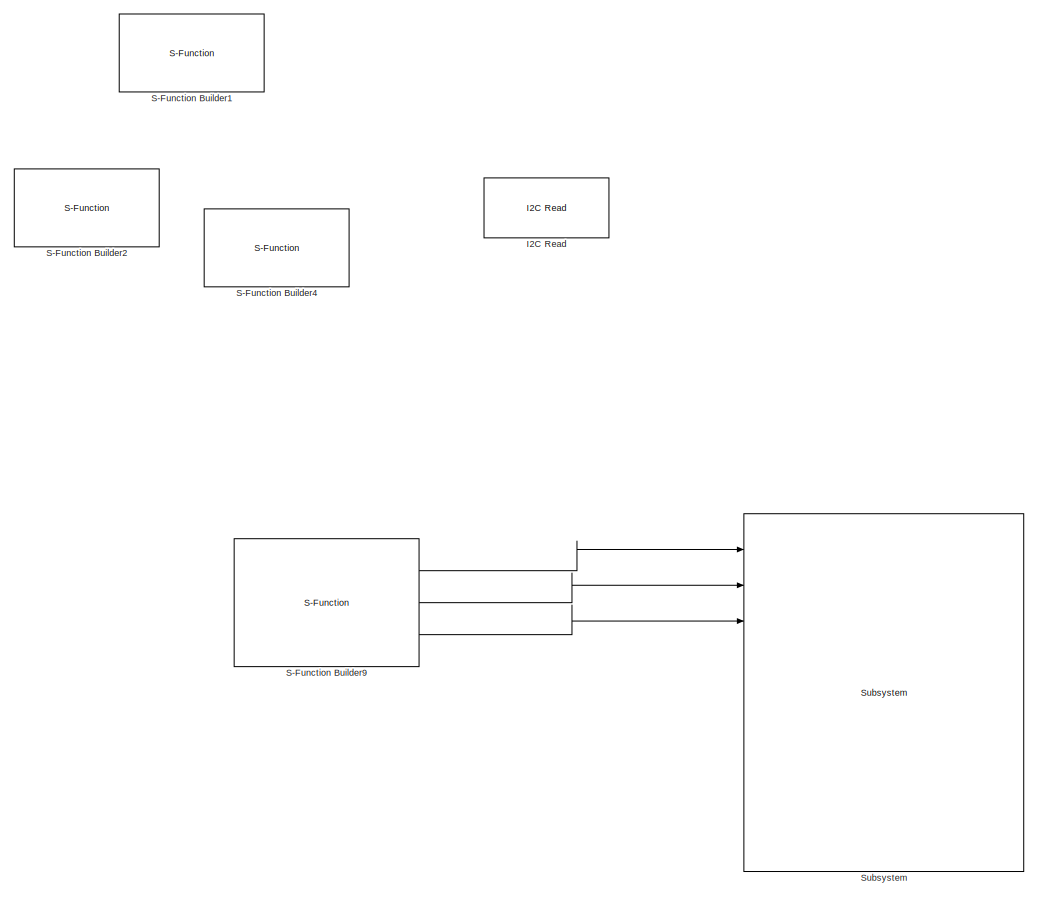
[diagram: root canvas - part 1/2, right side, full height]
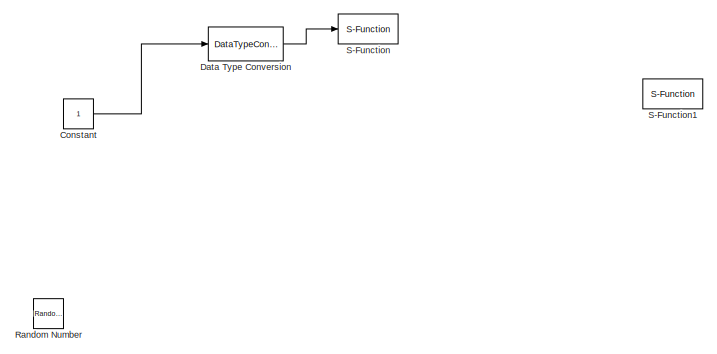
[diagram: root canvas - part 2/2, middle left region]
MODEL slx_cc9bb273c593
KIND model
CONFIG AbsTol = auto
CONFIG FixedStep = 1
CONFIG MaxStep = auto
CONFIG MinStep = auto
CONFIG RelTol = 1e-3
CONFIG SampleTimeConstraint = Unconstrained
CONFIG Solver = FixedStepAuto
CONFIG SolverMode = Auto
CONFIG SolverName = FixedStepAuto
CONFIG StartTime = 0.0
CONFIG StopTime = inf
BLOCK [Constant] Constant
  Commented = on
BLOCK [DataTypeConversion] Data Type Conversion
  Commented = on
  RndMeth = Floor
  SaturateOnIntegerOverflow = off
BLOCK [Reference] I2C Read  REF=arduinolib/I2C Read
  Commented = on
  Ports = [0, 1]
  SourceBlock = arduinolib/I2C Read
  SourceType = I2C Read
BLOCK [RandomNumber] Random Number
  Commented = on
  SampleTime = 0.1
BLOCK [S-Function] S-Function
  Commented = on
  EnableBusSupport = off
  FunctionName = pHSensor
  Parameters = int8(1)
  Ports = [1]
  SFunctionDeploymentMode = off
  SFunctionModules = pHSensor_wrapper
BLOCK [S-Function] S-Function Builder1
  Commented = on
  CopyFcn = set_param(gcbh,'LinkStatus','none')
  EnableBusSupport = off
  FunctionName = PWMRead
  InitFcn = try, set_param(gcb,'FunctionName','PWMRead'), end
  OpenFcn = sfunctionwizard(gcbh)
  Ports = [0, 1]
  PreSaveFcn = try, set_param(gcb,'FunctionName','PWMRead'), end
  SFunctionDeploymentMode = off
  SFunctionModules = PWMRead_wrapper
BLOCK [S-Function] S-Function Builder2
  Commented = on
  CopyFcn = set_param(gcbh,'LinkStatus','none')
  EnableBusSupport = off
  FunctionName = pHRead
  InitFcn = try, set_param(gcb,'FunctionName','pHRead'), end
  OpenFcn = sfunctionwizard(gcbh)
  Parameters = int8(1)
  Ports = [2, 1]
  PreSaveFcn = try, set_param(gcb,'FunctionName','pHRead'), end
  SFunctionDeploymentMode = off
  SFunctionModules = pHRead_wrapper
BLOCK [S-Function] S-Function Builder4
  Commented = on
  CopyFcn = set_param(gcbh,'LinkStatus','none')
  EnableBusSupport = off
  FunctionName = SerialOut
  InitFcn = try, set_param(gcb,'FunctionName','SerialOut'), end
  OpenFcn = sfunctionwizard(gcbh)
  Parameters = int8(0)
  Ports = [1]
  PreSaveFcn = try, set_param(gcb,'FunctionName','SerialOut'), end
  SFunctionDeploymentMode = off
  SFunctionModules = SerialOut_wrapper
BLOCK [S-Function] S-Function Builder9
  CopyFcn = set_param(gcbh,'LinkStatus','none')
  EnableBusSupport = off
  FunctionName = LIS3DHAccelerometer1
  InitFcn = try, set_param(gcb,'FunctionName','LIS3DHAccelerometer1'), end
  OpenFcn = sfunctionwizard(gcbh)
  Parameters = int8(1),int8(1)
  Ports = [0, 3]
  PreSaveFcn = try, set_param(gcb,'FunctionName','LIS3DHAccelerometer1'), end
  SFunctionDeploymentMode = off
  SFunctionModules = LIS3DHAccelerometer1_wrapper
BLOCK [S-Function] S-Function1
  Commented = on
  EnableBusSupport = off
  FunctionName = DACI2C
  Ports = []
  SFunctionDeploymentMode = off
  SFunctionModules = DACI2C_wrapper
BLOCK [Reference] Subsystem  REF=EEE481Arduino/Subsystem
  Commented = on
  Ports = [9, 3]
  SourceBlock = EEE481Arduino/Subsystem
LINE Constant:1 -> Data Type Conversion:1
LINE Data Type Conversion:1 -> S-Function:1
LINE S-Function Builder9:1 -> Subsystem:1
LINE S-Function Builder9:2 -> Subsystem:2
LINE S-Function Builder9:3 -> Subsystem:3
